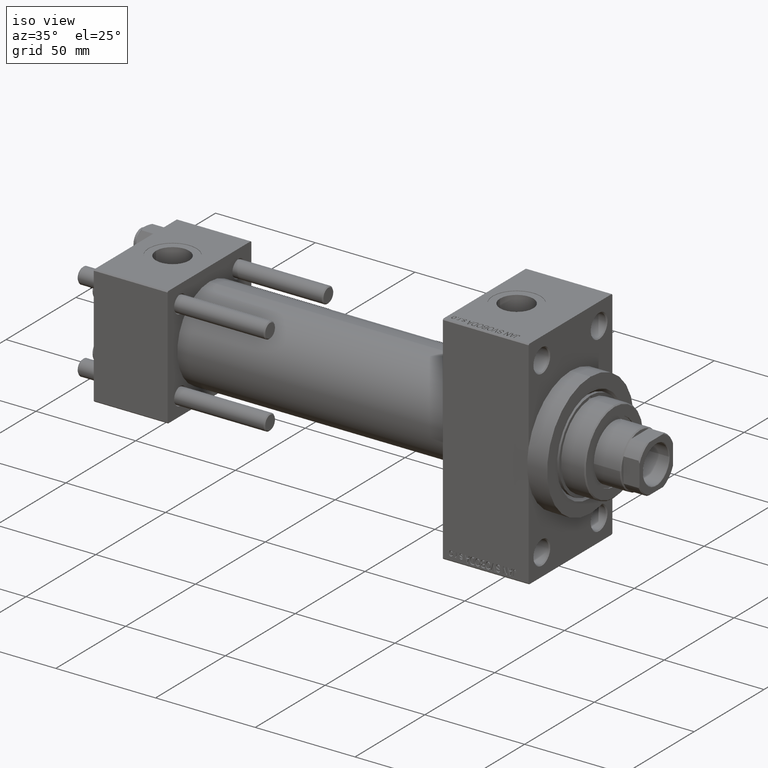
[diagram: clean part render]
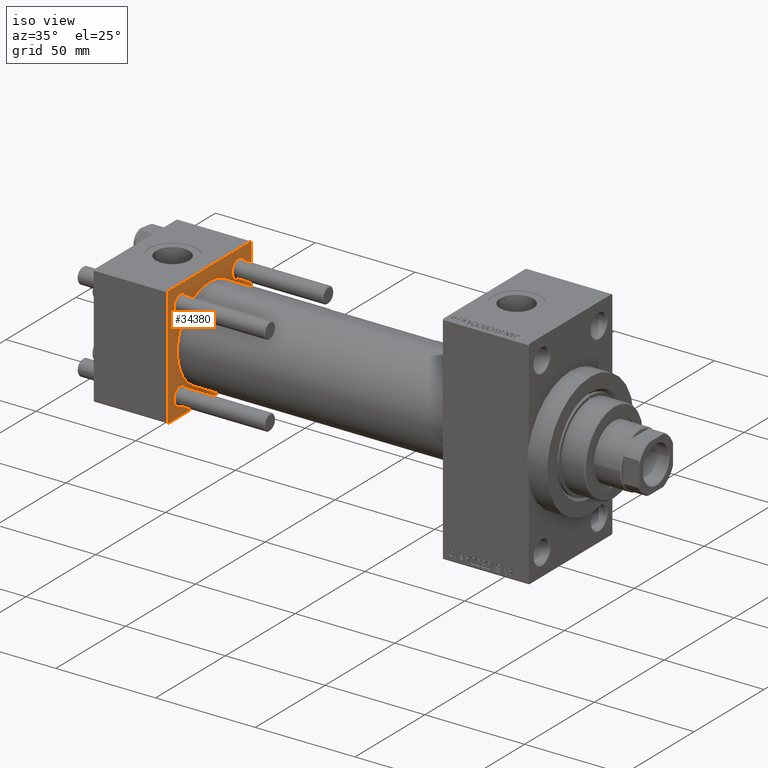
[diagram: same view with one face highlighted and labeled with its STEP entity id]
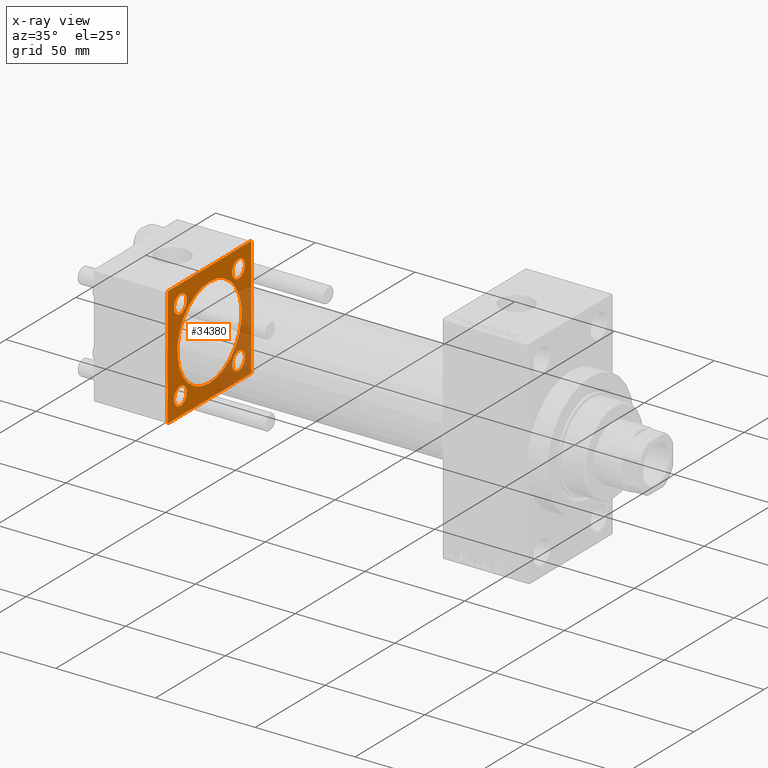
[diagram: x-ray of the same camera — body ghosted, the highlighted face saturated]
A machine part, iso view. The second image highlights one B-rep face of the part: STEP entity #34380.
The next image is the same camera in x-ray: the body ghosted, the highlighted face saturated — about 28% of this face is hidden behind the body in this view.
In plain terms, the highlighted planar face has unit normal (-1, 0, 0).
Its self-contained STEP definition (entity closure, byte-faithful):
#308 = ORIENTED_EDGE ( 'NONE', *, *, #29596, .F. ) ;
#530 = FACE_BOUND ( 'NONE', #6908, .T. ) ;
#578 = VECTOR ( 'NONE', #24720, 1000.000000000000000 ) ;
#951 = LINE ( 'NONE', #12416, #6694 ) ;
#1460 = CARTESIAN_POINT ( 'NONE',  ( 37.00000000000000000, -29.49999999999998579, 29.99999999999999289 ) ) ;
#1796 = VECTOR ( 'NONE', #21126, 999.9999999999998863 ) ;
#1948 = CARTESIAN_POINT ( 'NONE',  ( 37.00000000000000000, -29.50000000000001066, -30.00000000000000711 ) ) ;
#2061 = DIRECTION ( 'NONE',  ( 0.000000000000000000, 0.000000000000000000, 1.000000000000000000 ) ) ;
#2102 = DIRECTION ( 'NONE',  ( 0.000000000000000000, -1.000000000000000000, -1.156482317317871725E-16 ) ) ;
#2309 = CARTESIAN_POINT ( 'NONE',  ( 37.00000000000000000, 20.84999999999999787, 20.85000000000000142 ) ) ;
#3204 = EDGE_CURVE ( 'NONE', #31133, #20453, #35353, .T. ) ;
#4067 = ORIENTED_EDGE ( 'NONE', *, *, #18770, .T. ) ;
#4284 = EDGE_CURVE ( 'NONE', #14056, #23407, #46303, .T. ) ;
#4392 = ORIENTED_EDGE ( 'NONE', *, *, #36024, .T. ) ;
#4446 = VERTEX_POINT ( 'NONE', #5333 ) ;
#4559 = AXIS2_PLACEMENT_3D ( 'NONE', #26249, #41120, #7726 ) ;
#5128 = VERTEX_POINT ( 'NONE', #18110 ) ;
#5255 = EDGE_CURVE ( 'NONE', #31387, #21499, #31531, .T. ) ;
#5333 = CARTESIAN_POINT ( 'NONE',  ( 37.00000000000000000, 20.84999999999999787, 16.35000000000002274 ) ) ;
#5340 = FACE_BOUND ( 'NONE', #37677, .T. ) ;
#5502 = DIRECTION ( 'NONE',  ( -1.000000000000000000, 0.000000000000000000, -0.000000000000000000 ) ) ;
#5579 = DIRECTION ( 'NONE',  ( -1.000000000000000000, 0.000000000000000000, -0.000000000000000000 ) ) ;
#5647 = EDGE_CURVE ( 'NONE', #32648, #17355, #44783, .T. ) ;
#6614 = LINE ( 'NONE', #29033, #30412 ) ;
#6694 = VECTOR ( 'NONE', #41208, 1000.000000000000114 ) ;
#6908 = EDGE_LOOP ( 'NONE', ( #21204, #9376 ) ) ;
#6914 = EDGE_LOOP ( 'NONE', ( #308, #44213, #21649, #36266, #46445, #4392, #4067, #27423 ) ) ;
#7245 = AXIS2_PLACEMENT_3D ( 'NONE', #2309, #5502, #2061 ) ;
#7726 = DIRECTION ( 'NONE',  ( 0.000000000000000000, 0.000000000000000000, 1.000000000000000000 ) ) ;
#7759 = CARTESIAN_POINT ( 'NONE',  ( 37.00000000000000000, -20.84999999999999076, 20.85000000000000497 ) ) ;
#7816 = EDGE_CURVE ( 'NONE', #27662, #26888, #951, .T. ) ;
#8079 = CARTESIAN_POINT ( 'NONE',  ( 37.00000000000000000, 29.49999999999999289, 30.00000000000000000 ) ) ;
#8356 = AXIS2_PLACEMENT_3D ( 'NONE', #25454, #22526, #40320 ) ;
#8528 = EDGE_CURVE ( 'NONE', #21499, #31387, #19273, .T. ) ;
#9003 = FACE_BOUND ( 'NONE', #26892, .T. ) ;
#9376 = ORIENTED_EDGE ( 'NONE', *, *, #30835, .T. ) ;
#9954 = VECTOR ( 'NONE', #2102, 1000.000000000000000 ) ;
#10409 = CARTESIAN_POINT ( 'NONE',  ( 37.00000000000000711, 2.146024240737016609E-16, -23.00000000000000000 ) ) ;
#10577 = ORIENTED_EDGE ( 'NONE', *, *, #47933, .T. ) ;
#11546 = EDGE_CURVE ( 'NONE', #19998, #4446, #33728, .T. ) ;
#12242 = CARTESIAN_POINT ( 'NONE',  ( 37.00000000000000000, -20.84999999999999076, -20.85000000000000497 ) ) ;
#12287 = DIRECTION ( 'NONE',  ( 0.000000000000000000, 0.000000000000000000, 1.000000000000000000 ) ) ;
#12416 = CARTESIAN_POINT ( 'NONE',  ( 37.00000000000000000, 29.49999999999999289, 30.00000000000000000 ) ) ;
#12559 = CARTESIAN_POINT ( 'NONE',  ( 37.00000000000000000, 29.99999999999999289, -29.50000000000000000 ) ) ;
#13413 = CARTESIAN_POINT ( 'NONE',  ( 37.00000000000000711, -2.602085213965210642E-15, 23.00000000000000000 ) ) ;
#14011 = EDGE_CURVE ( 'NONE', #4446, #19998, #47077, .T. ) ;
#14056 = VERTEX_POINT ( 'NONE', #32298 ) ;
#15304 = EDGE_LOOP ( 'NONE', ( #29154, #36062 ) ) ;
#15335 = EDGE_CURVE ( 'NONE', #5128, #16209, #44267, .T. ) ;
#15565 = DIRECTION ( 'NONE',  ( -1.000000000000000000, 0.000000000000000000, -0.000000000000000000 ) ) ;
#15855 = CARTESIAN_POINT ( 'NONE',  ( 37.00000000000000000, -20.84999999999999076, -25.34999999999998010 ) ) ;
#16209 = VERTEX_POINT ( 'NONE', #12559 ) ;
#16845 = DIRECTION ( 'NONE',  ( 0.000000000000000000, 0.7071067811865474617, -0.7071067811865474617 ) ) ;
#17347 = DIRECTION ( 'NONE',  ( -0.000000000000000000, -0.7071067811865474617, -0.7071067811865474617 ) ) ;
#17355 = VERTEX_POINT ( 'NONE', #13413 ) ;
#17419 = VECTOR ( 'NONE', #16845, 1000.000000000000114 ) ;
#18110 = CARTESIAN_POINT ( 'NONE',  ( 37.00000000000000000, 29.49999999999997868, -30.00000000000000000 ) ) ;
#18720 = DIRECTION ( 'NONE',  ( 0.000000000000000000, 0.000000000000000000, 1.000000000000000000 ) ) ;
#18770 = EDGE_CURVE ( 'NONE', #36403, #31133, #27932, .T. ) ;
#19135 = CARTESIAN_POINT ( 'NONE',  ( 37.00000000000000000, 20.84999999999999787, 25.34999999999997655 ) ) ;
#19273 = CIRCLE ( 'NONE', #42635, 4.499999999999976019 ) ;
#19322 = FACE_OUTER_BOUND ( 'NONE', #6914, .T. ) ;
#19857 = CARTESIAN_POINT ( 'NONE',  ( 37.00000000000000000, 29.99999999999999289, 30.00000000000000000 ) ) ;
#19998 = VERTEX_POINT ( 'NONE', #19135 ) ;
#20030 = DIRECTION ( 'NONE',  ( 0.000000000000000000, 0.000000000000000000, 1.000000000000000000 ) ) ;
#20275 = DIRECTION ( 'NONE',  ( -1.000000000000000000, 0.000000000000000000, -0.000000000000000000 ) ) ;
#20453 = VERTEX_POINT ( 'NONE', #36564 ) ;
#20628 = CARTESIAN_POINT ( 'NONE',  ( 37.00000000000000000, -30.00000000000000000, 29.99999999999999289 ) ) ;
#20811 = CIRCLE ( 'NONE', #8356, 23.00000000000000000 ) ;
#21126 = DIRECTION ( 'NONE',  ( -0.000000000000000000, 0.7071067811865574537, 0.7071067811865376918 ) ) ;
#21204 = ORIENTED_EDGE ( 'NONE', *, *, #21484, .T. ) ;
#21484 = EDGE_CURVE ( 'NONE', #47922, #27998, #37833, .T. ) ;
#21499 = VERTEX_POINT ( 'NONE', #15855 ) ;
#21649 = ORIENTED_EDGE ( 'NONE', *, *, #28985, .F. ) ;
#21661 = LINE ( 'NONE', #28975, #29291 ) ;
#21781 = ORIENTED_EDGE ( 'NONE', *, *, #14011, .T. ) ;
#22422 = EDGE_CURVE ( 'NONE', #26888, #25185, #21661, .T. ) ;
#22429 = DIRECTION ( 'NONE',  ( -1.000000000000000000, 0.000000000000000000, -0.000000000000000000 ) ) ;
#22526 = DIRECTION ( 'NONE',  ( 1.000000000000000000, -0.000000000000000000, 0.000000000000000000 ) ) ;
#22675 = DIRECTION ( 'NONE',  ( 0.000000000000000000, 0.000000000000000000, 1.000000000000000000 ) ) ;
#23049 = AXIS2_PLACEMENT_3D ( 'NONE', #42170, #5579, #45825 ) ;
#23407 = VERTEX_POINT ( 'NONE', #37865 ) ;
#23862 = CARTESIAN_POINT ( 'NONE',  ( 37.00000000000000000, 0.000000000000000000, 0.000000000000000000 ) ) ;
#24264 = EDGE_CURVE ( 'NONE', #17355, #32648, #20811, .T. ) ;
#24302 = DIRECTION ( 'NONE',  ( 0.000000000000000000, 0.000000000000000000, 1.000000000000000000 ) ) ;
#24364 = AXIS2_PLACEMENT_3D ( 'NONE', #39171, #35748, #24302 ) ;
#24720 = DIRECTION ( 'NONE',  ( 0.000000000000000000, 0.000000000000000000, -1.000000000000000000 ) ) ;
#25185 = VERTEX_POINT ( 'NONE', #1460 ) ;
#25281 = AXIS2_PLACEMENT_3D ( 'NONE', #30468, #22429, #22675 ) ;
#25423 = CARTESIAN_POINT ( 'NONE',  ( 37.00000000000000000, 20.84999999999999787, -16.35000000000002274 ) ) ;
#25439 = ORIENTED_EDGE ( 'NONE', *, *, #24264, .F. ) ;
#25454 = CARTESIAN_POINT ( 'NONE',  ( 37.00000000000000711, -2.602085213965210642E-15, 0.000000000000000000 ) ) ;
#25529 = DIRECTION ( 'NONE',  ( 1.000000000000000000, -0.000000000000000000, 0.000000000000000000 ) ) ;
#25706 = CARTESIAN_POINT ( 'NONE',  ( 37.00000000000000000, -30.00000000000000000, -29.50000000000001776 ) ) ;
#26082 = AXIS2_PLACEMENT_3D ( 'NONE', #12242, #20275, #20030 ) ;
#26249 = CARTESIAN_POINT ( 'NONE',  ( 37.00000000000000000, 20.84999999999999787, -20.85000000000000142 ) ) ;
#26399 = FACE_BOUND ( 'NONE', #35702, .T. ) ;
#26888 = VERTEX_POINT ( 'NONE', #8079 ) ;
#26892 = EDGE_LOOP ( 'NONE', ( #10577, #42189 ) ) ;
#27423 = ORIENTED_EDGE ( 'NONE', *, *, #3204, .T. ) ;
#27638 = AXIS2_PLACEMENT_3D ( 'NONE', #33555, #25529, #12287 ) ;
#27662 = VERTEX_POINT ( 'NONE', #46299 ) ;
#27932 = LINE ( 'NONE', #20628, #42439 ) ;
#27998 = VERTEX_POINT ( 'NONE', #25423 ) ;
#28448 = LINE ( 'NONE', #39661, #9954 ) ;
#28975 = CARTESIAN_POINT ( 'NONE',  ( 37.00000000000000000, 29.99999999999999289, 30.00000000000000000 ) ) ;
#28985 = EDGE_CURVE ( 'NONE', #27662, #16209, #46430, .T. ) ;
#29033 = CARTESIAN_POINT ( 'NONE',  ( 37.00000000000000000, -30.00000000000000000, 29.49999999999999289 ) ) ;
#29154 = ORIENTED_EDGE ( 'NONE', *, *, #8528, .T. ) ;
#29291 = VECTOR ( 'NONE', #46803, 1000.000000000000000 ) ;
#29596 = EDGE_CURVE ( 'NONE', #5128, #20453, #28448, .T. ) ;
#30173 = CARTESIAN_POINT ( 'NONE',  ( 37.00000000000000000, 20.84999999999999787, -25.34999999999997655 ) ) ;
#30292 = CARTESIAN_POINT ( 'NONE',  ( 37.00000000000000000, -20.84999999999999076, -20.85000000000000497 ) ) ;
#30412 = VECTOR ( 'NONE', #17347, 1000.000000000000114 ) ;
#30468 = CARTESIAN_POINT ( 'NONE',  ( 37.00000000000000000, -20.84999999999999076, 20.85000000000000497 ) ) ;
#30835 = EDGE_CURVE ( 'NONE', #27998, #47922, #34884, .T. ) ;
#31133 = VERTEX_POINT ( 'NONE', #25706 ) ;
#31387 = VERTEX_POINT ( 'NONE', #31513 ) ;
#31416 = DIRECTION ( 'NONE',  ( -0.000000000000000000, 0.000000000000000000, 1.000000000000000000 ) ) ;
#31513 = CARTESIAN_POINT ( 'NONE',  ( 37.00000000000000000, -20.84999999999999076, -16.35000000000002629 ) ) ;
#31531 = CIRCLE ( 'NONE', #26082, 4.499999999999976019 ) ;
#32298 = CARTESIAN_POINT ( 'NONE',  ( 37.00000000000000000, -20.84999999999999076, 25.34999999999998010 ) ) ;
#32648 = VERTEX_POINT ( 'NONE', #10409 ) ;
#33555 = CARTESIAN_POINT ( 'NONE',  ( 37.00000000000000711, -2.602085213965210642E-15, 0.000000000000000000 ) ) ;
#33728 = CIRCLE ( 'NONE', #24364, 4.499999999999976019 ) ;
#34380 = ADVANCED_FACE ( 'NONE', ( #42413, #530, #9003, #5340, #26399, #19322 ), #37602, .F. ) ;
#34884 = CIRCLE ( 'NONE', #4559, 4.499999999999976019 ) ;
#35353 = LINE ( 'NONE', #1948, #17419 ) ;
#35481 = DIRECTION ( 'NONE',  ( 0.000000000000000000, 0.000000000000000000, -1.000000000000000000 ) ) ;
#35702 = EDGE_LOOP ( 'NONE', ( #25439, #46858 ) ) ;
#35748 = DIRECTION ( 'NONE',  ( -1.000000000000000000, 0.000000000000000000, -0.000000000000000000 ) ) ;
#36024 = EDGE_CURVE ( 'NONE', #25185, #36403, #6614, .T. ) ;
#36062 = ORIENTED_EDGE ( 'NONE', *, *, #5255, .T. ) ;
#36266 = ORIENTED_EDGE ( 'NONE', *, *, #7816, .T. ) ;
#36403 = VERTEX_POINT ( 'NONE', #44577 ) ;
#36564 = CARTESIAN_POINT ( 'NONE',  ( 37.00000000000000000, -29.50000000000000000, -30.00000000000000711 ) ) ;
#37602 = PLANE ( 'NONE',  #42085 ) ;
#37677 = EDGE_LOOP ( 'NONE', ( #21781, #41110 ) ) ;
#37833 = CIRCLE ( 'NONE', #23049, 4.499999999999976019 ) ;
#37865 = CARTESIAN_POINT ( 'NONE',  ( 37.00000000000000000, -20.84999999999999076, 16.35000000000002629 ) ) ;
#38313 = DIRECTION ( 'NONE',  ( 0.000000000000000000, 0.000000000000000000, 1.000000000000000000 ) ) ;
#38733 = DIRECTION ( 'NONE',  ( -1.000000000000000000, 0.000000000000000000, -0.000000000000000000 ) ) ;
#39171 = CARTESIAN_POINT ( 'NONE',  ( 37.00000000000000000, 20.84999999999999787, 20.85000000000000142 ) ) ;
#39647 = CARTESIAN_POINT ( 'NONE',  ( 37.00000000000000000, 29.99999999999999289, -29.50000000000000000 ) ) ;
#39661 = CARTESIAN_POINT ( 'NONE',  ( 37.00000000000000000, 29.99999999999999289, -30.00000000000000000 ) ) ;
#39757 = AXIS2_PLACEMENT_3D ( 'NONE', #7759, #15565, #18720 ) ;
#40320 = DIRECTION ( 'NONE',  ( 0.000000000000000000, 0.000000000000000000, 1.000000000000000000 ) ) ;
#41110 = ORIENTED_EDGE ( 'NONE', *, *, #11546, .T. ) ;
#41120 = DIRECTION ( 'NONE',  ( -1.000000000000000000, 0.000000000000000000, -0.000000000000000000 ) ) ;
#41208 = DIRECTION ( 'NONE',  ( 0.000000000000000000, -0.7071067811865474617, 0.7071067811865474617 ) ) ;
#41331 = CIRCLE ( 'NONE', #39757, 4.499999999999976019 ) ;
#42085 = AXIS2_PLACEMENT_3D ( 'NONE', #23862, #38733, #31416 ) ;
#42170 = CARTESIAN_POINT ( 'NONE',  ( 37.00000000000000000, 20.84999999999999787, -20.85000000000000142 ) ) ;
#42189 = ORIENTED_EDGE ( 'NONE', *, *, #4284, .T. ) ;
#42223 = DIRECTION ( 'NONE',  ( -1.000000000000000000, 0.000000000000000000, -0.000000000000000000 ) ) ;
#42413 = FACE_BOUND ( 'NONE', #15304, .T. ) ;
#42439 = VECTOR ( 'NONE', #35481, 1000.000000000000000 ) ;
#42635 = AXIS2_PLACEMENT_3D ( 'NONE', #30292, #42223, #38313 ) ;
#44213 = ORIENTED_EDGE ( 'NONE', *, *, #15335, .T. ) ;
#44267 = LINE ( 'NONE', #39647, #1796 ) ;
#44577 = CARTESIAN_POINT ( 'NONE',  ( 37.00000000000000000, -30.00000000000000000, 29.49999999999999289 ) ) ;
#44783 = CIRCLE ( 'NONE', #27638, 23.00000000000000000 ) ;
#45825 = DIRECTION ( 'NONE',  ( 0.000000000000000000, 0.000000000000000000, 1.000000000000000000 ) ) ;
#46299 = CARTESIAN_POINT ( 'NONE',  ( 37.00000000000000000, 29.99999999999999289, 29.50000000000000000 ) ) ;
#46303 = CIRCLE ( 'NONE', #25281, 4.499999999999976019 ) ;
#46430 = LINE ( 'NONE', #19857, #578 ) ;
#46445 = ORIENTED_EDGE ( 'NONE', *, *, #22422, .T. ) ;
#46803 = DIRECTION ( 'NONE',  ( 0.000000000000000000, -1.000000000000000000, -1.156482317317871725E-16 ) ) ;
#46858 = ORIENTED_EDGE ( 'NONE', *, *, #5647, .F. ) ;
#47077 = CIRCLE ( 'NONE', #7245, 4.499999999999976019 ) ;
#47922 = VERTEX_POINT ( 'NONE', #30173 ) ;
#47933 = EDGE_CURVE ( 'NONE', #23407, #14056, #41331, .T. ) ;